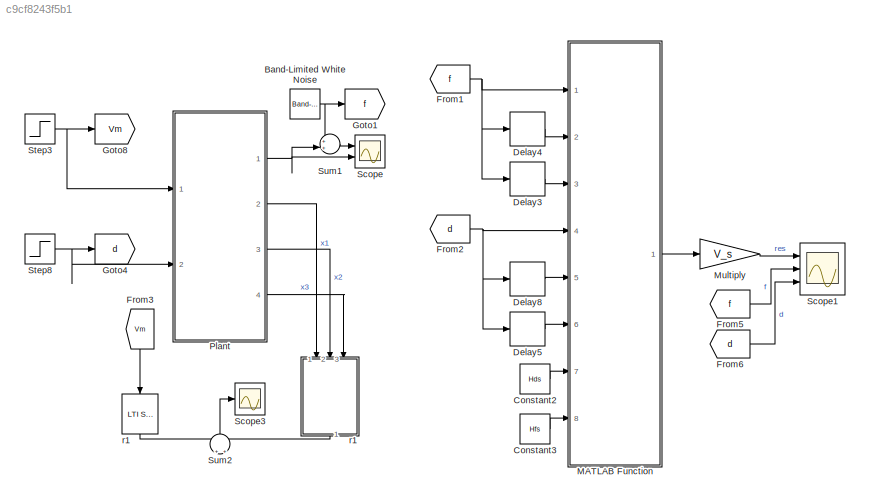
MODEL slx_c9cf8243f5b1
KIND model
CONFIG AbsTol = auto
CONFIG EnableMultiTasking = off
CONFIG FixedStep = auto
CONFIG MaxStep = auto
CONFIG MinStep = auto
CONFIG RelTol = 1e-3
CONFIG SampleTimeConstraint = Unconstrained
CONFIG SolverName = VariableStepAuto
CONFIG StartTime = 0.0
CONFIG StopTime = 5
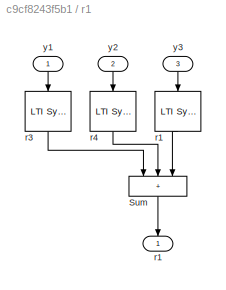
BLOCK [SubSystem]  r1
  NameLocation = left
  Ports = [3, 1]
  RequestExecContextInheritance = off
BLOCK [Reference]  r1/ r1  REF=cstblocks/LTI System
  NameLocation = left
  Ports = [1, 1]
  SourceBlock = cstblocks/LTI System
  SourceProductBaseCode = CT
  SourceType = LTI Block
BLOCK [Sum]  r1/Sum
  IconShape = rectangular
  Inputs = +++
  NameLocation = left
  Ports = [3, 1]
BLOCK [Outport]  r1/r1
  NameLocation = right
BLOCK [Reference]  r1/r3  REF=cstblocks/LTI System
  NameLocation = left
  Ports = [1, 1]
  SourceBlock = cstblocks/LTI System
  SourceProductBaseCode = CT
  SourceType = LTI Block
BLOCK [Reference]  r1/r4  REF=cstblocks/LTI System
  NameLocation = left
  Ports = [1, 1]
  SourceBlock = cstblocks/LTI System
  SourceProductBaseCode = CT
  SourceType = LTI Block
BLOCK [Inport]  r1/y1
  NameLocation = right
BLOCK [Inport]  r1/y2
  NameLocation = right
  Port = 2
BLOCK [Inport]  r1/y3
  NameLocation = right
  Port = 3
BLOCK [Reference] Band-Limited White Noise  REF=simulink/Sources/Band-Limited
White Noise
  Ports = [0, 1]
  SourceBlock = simulink/Sources/Band-Limited\nWhite Noise
  SourceProductBaseCode = SL
  SourceType = Band-Limited White Noise.
BLOCK [Constant] Constant2
  Value = Hds
BLOCK [Constant] Constant3
  Value = Hfs
BLOCK [Delay] Delay3
  DelayLength = 1
  InitialCondition = 0
  InputPortMap = u0
  Ports = [1, 1]
BLOCK [Delay] Delay4
  DelayLength = 1
  InitialCondition = 0
  InputPortMap = u0
  Ports = [1, 1]
BLOCK [Delay] Delay5
  DelayLength = 1
  InitialCondition = 0
  InputPortMap = u0
  Ports = [1, 1]
BLOCK [Delay] Delay8
  DelayLength = 1
  InitialCondition = 0
  InputPortMap = u0
  Ports = [1, 1]
BLOCK [From] From1
  GotoTag = f
  TagVisibility = global
BLOCK [From] From2
  GotoTag = d
  TagVisibility = global
BLOCK [From] From3
  GotoTag = Vm
  NameLocation = left
  TagVisibility = global
BLOCK [From] From5
  GotoTag = f
  TagVisibility = global
BLOCK [From] From6
  GotoTag = d
  TagVisibility = global
BLOCK [Goto] Goto1
  GotoTag = f
  TagVisibility = global
BLOCK [Goto] Goto4
  GotoTag = d
  TagVisibility = global
BLOCK [Goto] Goto8
  GotoTag = Vm
  NameLocation = top
  TagVisibility = global
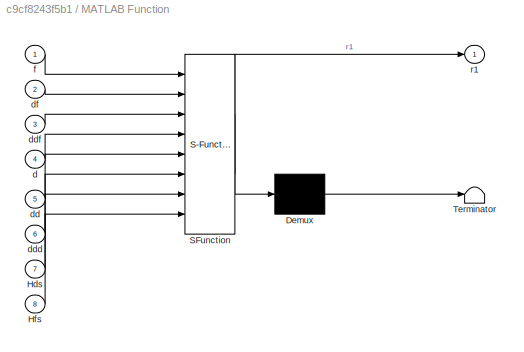
BLOCK [SubSystem] MATLAB Function
  ErrorFcn = Stateflow.Translate.translate
  PermitHierarchicalResolution = ExplicitOnly
  Ports = [8, 1]
  RequestExecContextInheritance = off
  SFBlockType = MATLAB Function
  TreatAsAtomicUnit = on
BLOCK [Demux] MATLAB Function/ Demux 
  Outputs = 1
  Ports = [1, 1]
BLOCK [S-Function] MATLAB Function/ SFunction 
  EnableBusSupport = on
  FunctionName = sf_sfun
  PortCounts = [8 2]
  Ports = [8, 2]
  SFcnIsStateOwnerBlock = off
  SFunctionDeploymentMode = off
  Tag = Stateflow S-Function 1
BLOCK [Terminator] MATLAB Function/ Terminator 
BLOCK [Inport] MATLAB Function/Hds
  Port = 7
BLOCK [Inport] MATLAB Function/Hfs
  Port = 8
BLOCK [Inport] MATLAB Function/d
  Port = 4
BLOCK [Inport] MATLAB Function/dd
  Port = 5
BLOCK [Inport] MATLAB Function/ddd
  Port = 6
BLOCK [Inport] MATLAB Function/ddf
  Port = 3
BLOCK [Inport] MATLAB Function/df
  Port = 2
BLOCK [Inport] MATLAB Function/f
BLOCK [Outport] MATLAB Function/r1
BLOCK [Gain] Multiply
  Gain = V_s
  Multiplication = Matrix(K*u)
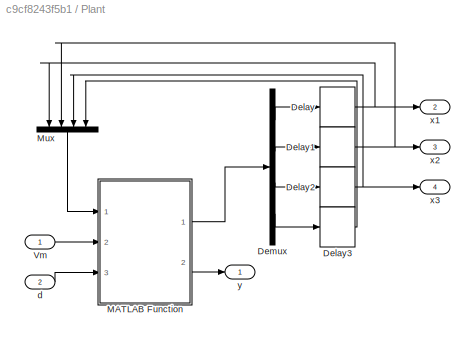
BLOCK [SubSystem] Plant
  Ports = [2, 4]
  RequestExecContextInheritance = off
BLOCK [Delay] Plant/Delay
  DelayLength = 1
  InputPortMap = u0
  InputProcessing = Columns as channels (frame based)
  Ports = [1, 1]
  SampleTime = 0.1
BLOCK [Delay] Plant/Delay1
  DelayLength = 1
  InputPortMap = u0
  InputProcessing = Columns as channels (frame based)
  Ports = [1, 1]
  SampleTime = 0.1
BLOCK [Delay] Plant/Delay2
  DelayLength = 1
  InputPortMap = u0
  InputProcessing = Columns as channels (frame based)
  Ports = [1, 1]
  SampleTime = 0.1
BLOCK [Delay] Plant/Delay3
  DelayLength = 1
  InputPortMap = u0
  InputProcessing = Columns as channels (frame based)
  Ports = [1, 1]
  SampleTime = 0.1
BLOCK [Demux] Plant/Demux
  Ports = [1, 4]
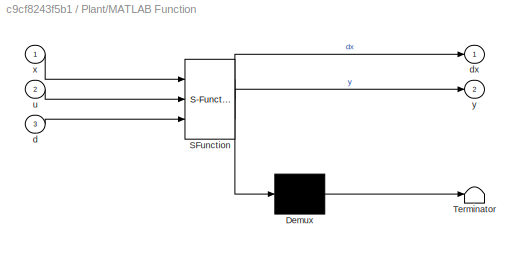
BLOCK [SubSystem] Plant/MATLAB Function
  ErrorFcn = Stateflow.Translate.translate
  PermitHierarchicalResolution = ExplicitOnly
  Ports = [3, 2]
  RequestExecContextInheritance = off
  SFBlockType = MATLAB Function
  TreatAsAtomicUnit = on
BLOCK [Demux] Plant/MATLAB Function/ Demux 
  Outputs = 1
  Ports = [1, 1]
BLOCK [S-Function] Plant/MATLAB Function/ SFunction 
  EnableBusSupport = on
  FunctionName = sf_sfun
  PortCounts = [3 3]
  Ports = [3, 3]
  SFcnIsStateOwnerBlock = off
  SFunctionDeploymentMode = off
  Tag = Stateflow S-Function 2
BLOCK [Terminator] Plant/MATLAB Function/ Terminator 
BLOCK [Inport] Plant/MATLAB Function/d
  Port = 3
BLOCK [Outport] Plant/MATLAB Function/dx
BLOCK [Inport] Plant/MATLAB Function/u
  Port = 2
BLOCK [Inport] Plant/MATLAB Function/x
BLOCK [Outport] Plant/MATLAB Function/y
  Port = 2
BLOCK [Mux] Plant/Mux
  DisplayOption = bar
  NameLocation = left
  Ports = [4, 1]
BLOCK [Inport] Plant/Vm
BLOCK [Inport] Plant/d
  Port = 2
BLOCK [Outport] Plant/x1
  Port = 2
BLOCK [Outport] Plant/x2
  Port = 3
BLOCK [Outport] Plant/x3
  Port = 4
BLOCK [Outport] Plant/y
BLOCK [Scope] Scope
  Floating = off
  NumInputPorts = 2
  Ports = [2]
  ScopeSpecificationString = Simulink.scopes.TimeScopeBlockCfg('CurrentConfiguration', extmgr.ConfigurationSet(extmgr.Configuration('Core','General UI',true),extmgr.Configuration('Core','Source UI',true),extmgr.Configuration('Sources','WiredSimulink',true,'DataLoggingVariableName','ScopeData1'),extmgr.Configuration('Visuals','Time Domain',true,'SerializedDisplays',{struct('MinYLimReal','-81370876448681523268070408192.00000','...<+2237ch>
BLOCK [Scope] Scope1
  Floating = off
  NumInputPorts = 3
  Ports = [3]
  ScopeSpecificationString = Simulink.scopes.TimeScopeBlockCfg('CurrentConfiguration', extmgr.ConfigurationSet(extmgr.Configuration('Core','General UI',true),extmgr.Configuration('Core','Source UI',true),extmgr.Configuration('Sources','WiredSimulink',true),extmgr.Configuration('Visuals','Time Domain',true,'SerializedDisplays',{struct('MinYLimReal','-137.61027','MaxYLimReal','147.41811','YLabelReal','','MinYLimMag',' 0.00000',...<+2136ch>
BLOCK [Scope] Scope3
  Floating = off
  NumInputPorts = 1
  Ports = [1]
  ScopeSpecificationString = Simulink.scopes.TimeScopeBlockCfg('CurrentConfiguration', extmgr.ConfigurationSet(extmgr.Configuration('Core','General UI',true),extmgr.Configuration('Core','Source UI',true),extmgr.Configuration('Sources','WiredSimulink',true,'DataLoggingVariableName','ScopeData3'),extmgr.Configuration('Visuals','Time Domain',true,'SerializedDisplays',{struct('MinYLimReal','-1.87882','MaxYLimReal','2.8868','YLabe...<+1438ch>
BLOCK [Step] Step3
  After = 2
  SampleTime = 0
  Time = 0
BLOCK [Step] Step8
  After = 0.1
  SampleTime = 0
BLOCK [Sum] Sum1
  Inputs = ++|
  NameLocation = top
  Ports = [2, 1]
BLOCK [Sum] Sum2
  Inputs = +|+
  NameLocation = left
  Ports = [2, 1]
BLOCK [Reference] r1  REF=cstblocks/LTI System
  NameLocation = left
  Ports = [1, 1]
  SourceBlock = cstblocks/LTI System
  SourceProductBaseCode = CT
  SourceType = LTI Block
LINE  r1/ r1:1 ->  r1/Sum:3
LINE  r1/Sum:1 ->  r1/r1:1
LINE  r1/r3:1 ->  r1/Sum:1
LINE  r1/r4:1 ->  r1/Sum:2
LINE  r1/y1:1 ->  r1/r3:1
LINE  r1/y2:1 ->  r1/r4:1
LINE  r1/y3:1 ->  r1/ r1:1
LINE  r1:1 -> Sum2:2
NET Band-Limited White Noise:1 -> Goto1:1, Sum1:1
LINE Constant2:1 -> MATLAB Function:7
LINE Constant3:1 -> MATLAB Function:8
LINE Delay3:1 -> MATLAB Function:3
LINE Delay4:1 -> MATLAB Function:2
LINE Delay5:1 -> MATLAB Function:6
LINE Delay8:1 -> MATLAB Function:5
NET From1:1 -> Delay3:1, Delay4:1, MATLAB Function:1
NET From2:1 -> Delay5:1, Delay8:1, MATLAB Function:4
LINE From3:1 -> r1:1
LINE From5:1 -> Scope1:2
LINE From6:1 -> Scope1:3
LINE MATLAB Function:1 -> Multiply:1
LINE Multiply:1 -> Scope1:1
NET Plant/Delay1:1 -> Plant/Mux:2, Plant/x2:1
NET Plant/Delay2:1 -> Plant/Mux:3, Plant/x3:1
LINE Plant/Delay3:1 -> Plant/Mux:4
NET Plant/Delay:1 -> Plant/Mux:1, Plant/x1:1
LINE Plant/Demux:1 -> Plant/Delay:1
LINE Plant/Demux:2 -> Plant/Delay1:1
LINE Plant/Demux:3 -> Plant/Delay2:1
LINE Plant/Demux:4 -> Plant/Delay3:1
LINE Plant/MATLAB Function:1 -> Plant/Demux:1
LINE Plant/MATLAB Function:2 -> Plant/y:1
LINE Plant/Mux:1 -> Plant/MATLAB Function:1
LINE Plant/Vm:1 -> Plant/MATLAB Function:2
LINE Plant/d:1 -> Plant/MATLAB Function:3
NET Plant:1 -> Scope:2, Sum1:2
LINE Plant:2 ->  r1:1
LINE Plant:3 ->  r1:2
LINE Plant:4 ->  r1:3
NET Step3:1 -> Goto8:1, Plant:1
NET Step8:1 -> Goto4:1, Plant:2
LINE Sum1:1 -> Scope:1
LINE Sum2:1 -> Scope3:1
LINE r1:1 -> Sum2:1
note: NET lines group one-source signal fan-out (src -> all destinations, sorted); 1:1 wires keep LINE
CHART MATLAB Function states=1 transitions=1
  STATE_LABEL 'eML_blk_kernel()'
  STATE_LABEL 'SCRIPT:\nfunction r1 = fcn(f,df,ddf,d,dd,ddd,Hds,Hfs)\nd=[ddd;dd;d];\nf=[ddf;df;f];\nr1 = (Hds*d + Hfs*f);\n'
CHART Plant/MATLAB Function states=1 transitions=1
  STATE_LABEL 'eML_blk_kernel()'
  STATE_LABEL "SCRIPT:\nfunction [dx,y]  = plant(x,u,d)\n% dx = zeros(2,1);\nA=[1 0.0001125 -0.05685 8.174e-006;\n    0 1.01 0.01162 0.03003;\n    0 -0.00384 0.9441 -0.0002962;\n    0 0.6434 0.768 1.005];\nB=[0.005288 0.03723 -0.1792 2.461]';\nBd=B;\nC=[eye(3) zeros(3,1)];\ntemp = A*x;\ntemp2 = B*u;\ntemp3 = Bd*d;\ny=C*x;\ndx = temp(:,1) + temp2(:,1) + temp3(:,1);\nend"
CHART  states=0 transitions=0
CHART  states=0 transitions=0
